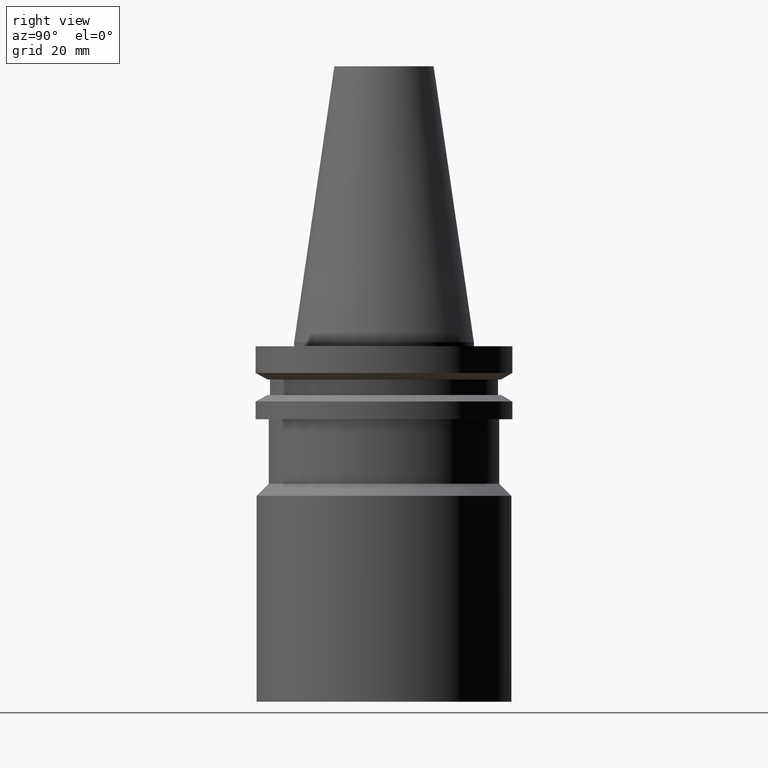
[diagram: clean part render]
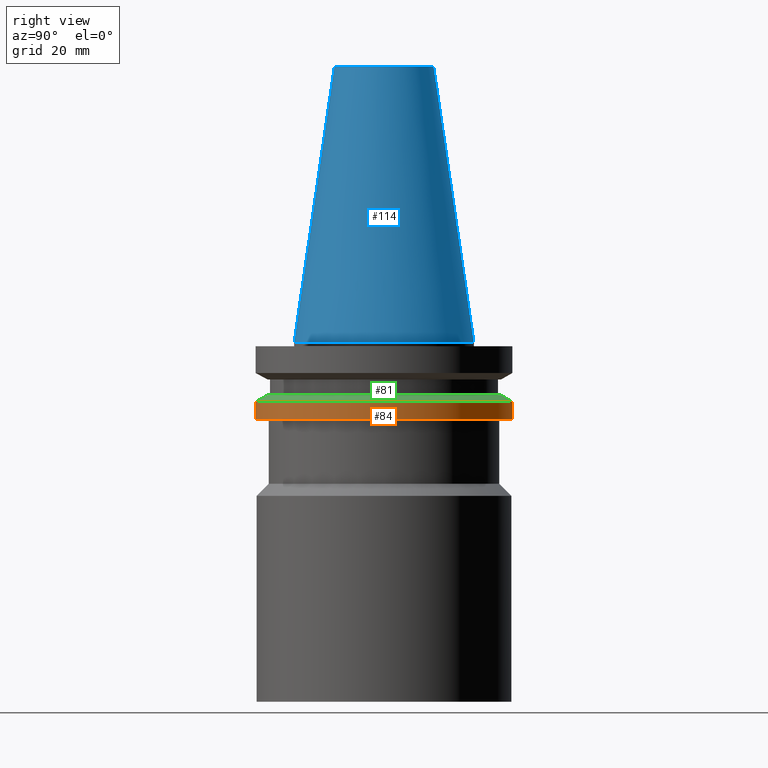
[diagram: same view with three faces highlighted in distinct colors, each labeled with its STEP entity id]
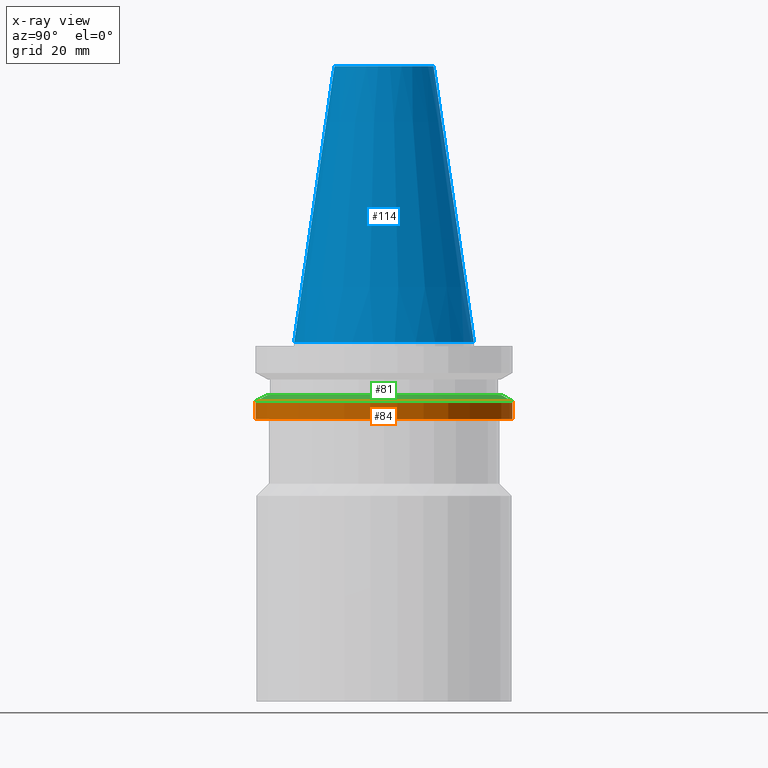
[diagram: x-ray of the same camera — body ghosted, the three highlighted faces saturated]
A machine part, right view with three faces highlighted in distinct colors.
The next image is the same camera in x-ray (body ghosted, the three faces saturated) — at least one of them is partly hidden behind the body in this view.
Their STEP definitions:

[orange] entity #84 — the highlighted cylindrical surface (bore or boss wall) has radius 31.75 mm, axis along (0, 0, -1).
#78=EDGE_CURVE('Unnamed[1]',#188,#188,#189,.T.);
#84=ADVANCED_FACE('Unnamed[1]',(#197,#198),#199,.T.);
#133=EDGE_CURVE('Unnamed[1]',#273,#273,#274,.T.);
#188=VERTEX_POINT('',#330);
#189=CIRCLE('',#331,31.75);
#197=FACE_BOUND('',#341,.T.);
#198=FACE_BOUND('',#342,.T.);
#199=CYLINDRICAL_SURFACE('',#343,31.75);
#273=VERTEX_POINT('',#435);
#274=CIRCLE('',#436,31.75);
#330=CARTESIAN_POINT('',(8.96835999945531E-016,31.7499999999999,-14.6464433756728));
#331=AXIS2_PLACEMENT_3D('',#481,#482,#483);
#341=EDGE_LOOP('',(#491));
#342=EDGE_LOOP('',(#492));
#343=AXIS2_PLACEMENT_3D('',#493,#494,#495);
#435=CARTESIAN_POINT('',(1.16647607618784E-015,31.7499999999999,-19.0499999999998));
#436=AXIS2_PLACEMENT_3D('',#576,#577,#578);
#481=CARTESIAN_POINT('',(8.96835999945533E-016,-2.60980020172512E-014,-14.6464433756728));
#482=DIRECTION('',(6.12323399573677E-017,4.5708356297992E-016,-1.0));
#483=DIRECTION('',(-3.28154488480826E-032,1.0,4.5708356297992E-016));
#491=ORIENTED_EDGE('',*,*,#133,.F.);
#492=ORIENTED_EDGE('',*,*,#78,.T.);
#493=CARTESIAN_POINT('',(1.03165603806669E-015,-2.50916053414356E-014,-16.8482216878363));
#494=DIRECTION('',(6.12323399573677E-017,4.5708356297992E-016,-1.0));
#495=DIRECTION('',(-3.28154488480826E-032,1.0,4.5708356297992E-016));
#576=CARTESIAN_POINT('',(1.16647607618785E-015,-2.408520866562E-014,-19.0499999999999));
#577=DIRECTION('',(6.12323399573677E-017,4.5708356297992E-016,-1.0));
#578=DIRECTION('',(-3.28154488480826E-032,1.0,4.5708356297992E-016));

[blue] entity #114 — the highlighted conical surface has half-angle 8.297 deg.
#58=EDGE_CURVE('Unnamed[1]',#156,#156,#157,.T.);
#109=EDGE_CURVE('Unnamed[1]',#235,#235,#236,.T.);
#114=ADVANCED_FACE('Unnamed[1]',(#242,#243),#244,.T.);
#156=VERTEX_POINT('',#290);
#157=CIRCLE('',#291,22.225);
#235=VERTEX_POINT('',#387);
#236=CIRCLE('',#388,12.271875);
#242=FACE_BOUND('',#396,.T.);
#243=FACE_BOUND('',#397,.T.);
#244=CONICAL_SURFACE('',#398,17.2484375,0.144812498238939);
#290=CARTESIAN_POINT('',(-7.23525537133772E-030,22.225,1.16408615232721E-013));
#291=AXIS2_PLACEMENT_3D('',#445,#446,#447);
#387=CARTESIAN_POINT('',(-4.17910720209035E-015,12.271875,68.2500000000002));
#388=AXIS2_PLACEMENT_3D('',#534,#535,#536);
#396=EDGE_LOOP('',(#541));
#397=EDGE_LOOP('',(#542));
#398=AXIS2_PLACEMENT_3D('',#543,#544,#545);
#445=CARTESIAN_POINT('',(-6.09114720904207E-030,-3.27926505403873E-014,9.9475983006414E-014));
#446=DIRECTION('',(6.12323399573677E-017,4.57083562979934E-016,-1.0));
#447=DIRECTION('',(-3.28154488480789E-032,1.0,4.57083562979934E-016));
#534=CARTESIAN_POINT('',(-4.17910720209035E-015,-6.39886037137663E-014,68.2500000000002));
#535=DIRECTION('',(6.12323399573677E-017,4.57083562979896E-016,-1.0));
#536=DIRECTION('',(-3.28154488480783E-032,1.0,4.57083562979896E-016));
#541=ORIENTED_EDGE('',*,*,#58,.F.);
#542=ORIENTED_EDGE('',*,*,#109,.T.);
#543=CARTESIAN_POINT('',(-2.08955360104518E-015,-4.83906271270768E-014,34.1250000000001));
#544=DIRECTION('',(6.12323399573677E-017,4.57083562979897E-016,-1.0));
#545=DIRECTION('',(-3.28154488480761E-032,1.0,4.57083562979897E-016));

[green] entity #81 — the highlighted conical surface has half-angle 60 deg.
#78=EDGE_CURVE('Unnamed[1]',#188,#188,#189,.T.);
#81=ADVANCED_FACE('Unnamed[1]',(#192,#193),#194,.T.);
#122=EDGE_CURVE('Unnamed[1]',#255,#255,#256,.T.);
#188=VERTEX_POINT('',#330);
#189=CIRCLE('',#331,31.75);
#192=FACE_BOUND('',#335,.T.);
#193=FACE_BOUND('',#336,.T.);
#194=CONICAL_SURFACE('',#337,30.358779226926,1.0471975511966);
#255=VERTEX_POINT('',#413);
#256=CIRCLE('',#414,28.967558453852);
#330=CARTESIAN_POINT('',(8.96835999945531E-016,31.7499999999999,-14.6464433756728));
#331=AXIS2_PLACEMENT_3D('',#481,#482,#483);
#335=EDGE_LOOP('',(#485));
#336=EDGE_LOOP('',(#486));
#337=AXIS2_PLACEMENT_3D('',#487,#488,#489);
#413=CARTESIAN_POINT('',(7.98469713044065E-016,28.967558453852,-13.0399999999998));
#414=AXIS2_PLACEMENT_3D('',#555,#556,#557);
#481=CARTESIAN_POINT('',(8.96835999945533E-016,-2.60980020172512E-014,-14.6464433756728));
#482=DIRECTION('',(6.12323399573677E-017,4.5708356297992E-016,-1.0));
#483=DIRECTION('',(-3.28154488480826E-032,1.0,4.5708356297992E-016));
#485=ORIENTED_EDGE('',*,*,#78,.F.);
#486=ORIENTED_EDGE('',*,*,#122,.T.);
#487=CARTESIAN_POINT('',(8.47652856494799E-016,-2.64651414481903E-014,-13.8432216878363));
#488=DIRECTION('',(6.12323399573677E-017,4.57083562979896E-016,-1.0));
#489=DIRECTION('',(-3.28154488480789E-032,1.0,4.57083562979896E-016));
#555=CARTESIAN_POINT('',(7.98469713044066E-016,-2.68322808791293E-014,-13.0399999999999));
#556=DIRECTION('',(6.12323399573677E-017,4.57083562979926E-016,-1.0));
#557=DIRECTION('',(-3.2815448848081E-032,1.0,4.57083562979926E-016));